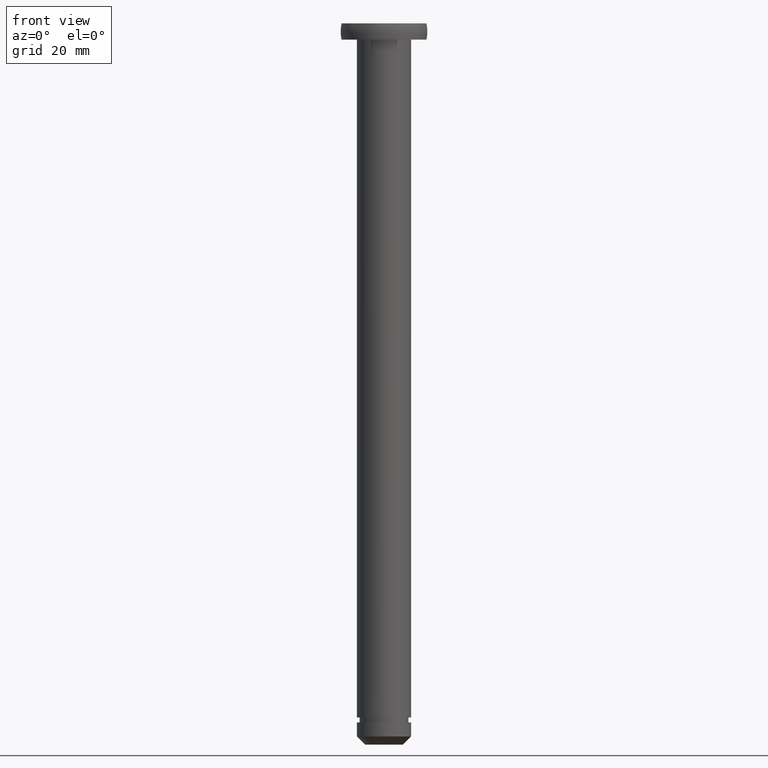
[diagram: clean part render]
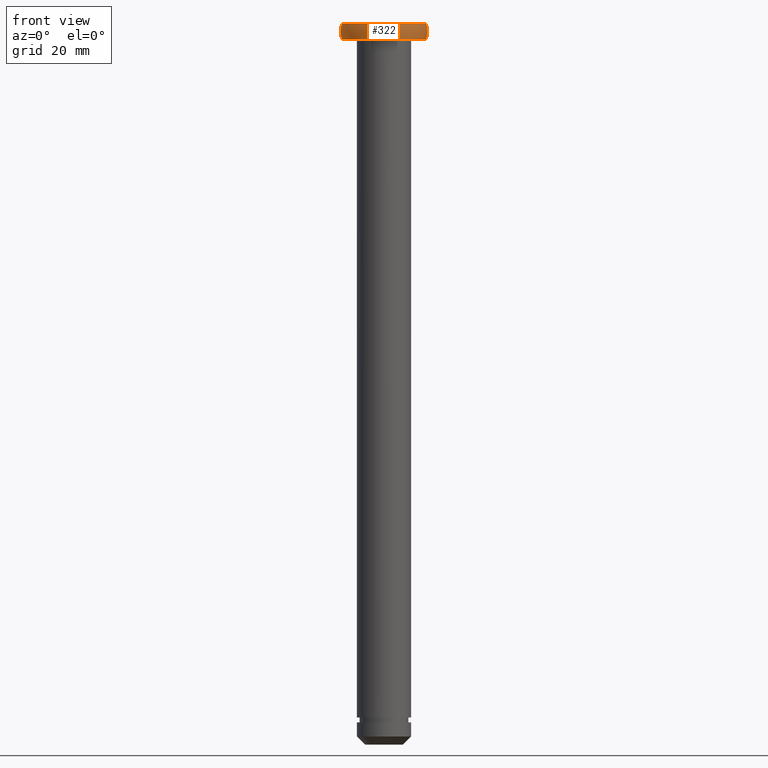
[diagram: same view with one face highlighted and labeled with its STEP entity id]
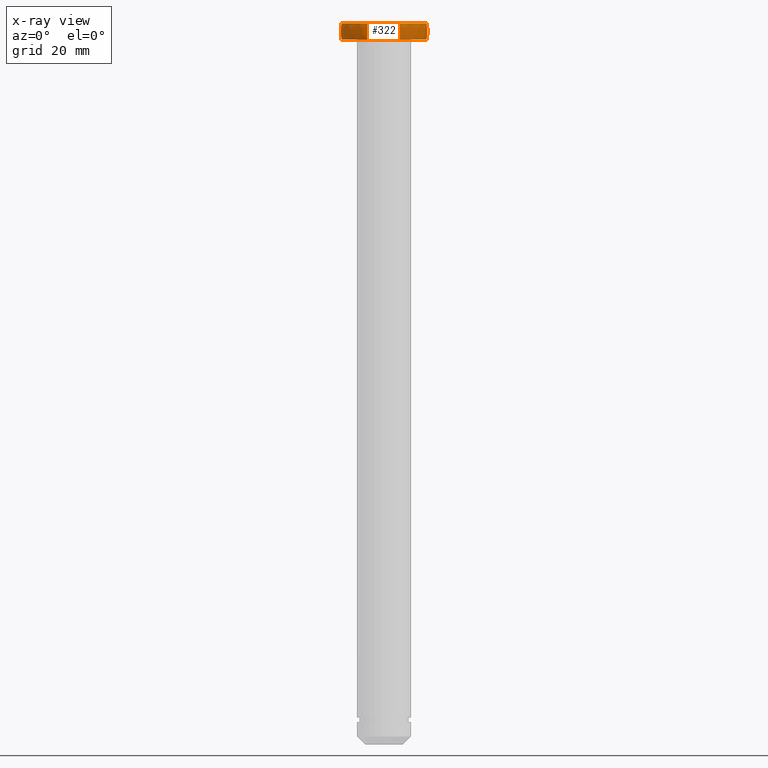
[diagram: x-ray of the same camera — body ghosted, the highlighted face saturated]
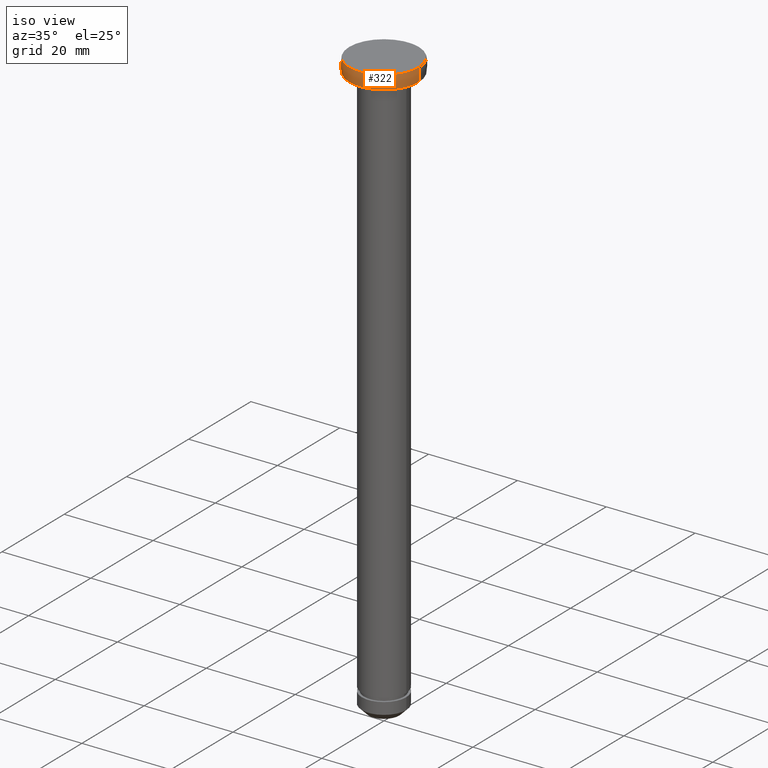
[diagram: same view with one face highlighted and labeled with its STEP entity id]
A machine part, front view. The second image highlights one B-rep face of the part: STEP entity #322.
The next image is the same camera in x-ray: the body ghosted, the highlighted face saturated — about 0% of this face is hidden behind the body in this view.
A second angle (iso view) of the same face is appended — the face is thin or edge-on in the first view.
In plain terms, the highlighted toroidal blend (fillet) surface has major radius 1.3572 mm and minor (blend) radius 6.6428 mm.
Its self-contained STEP definition (entity closure, byte-faithful):
#2 = DIRECTION ( 'NONE',  ( 0.0000000000000000000, 0.0000000000000000000, -1.000000000000000000 ) ) ;
#14 = VERTEX_POINT ( 'NONE', #204 ) ;
#29 = CARTESIAN_POINT ( 'NONE',  ( -7.828427118366898100, 0.0000000000000000000, -3.280275356898344000E-014 ) ) ;
#51 = AXIS2_PLACEMENT_3D ( 'NONE', #267, #450, #375 ) ;
#63 = CARTESIAN_POINT ( 'NONE',  ( 0.0000000000000000000, 0.0000000000000000000, -1.500000009021790000 ) ) ;
#84 = TOROIDAL_SURFACE ( 'NONE', #169, 1.357233208769998100, 6.642766791230085800 ) ;
#85 = CARTESIAN_POINT ( 'NONE',  ( 7.828427118366898100, 9.587058212866361900E-016, -3.280275356898344000E-014 ) ) ;
#90 = VERTEX_POINT ( 'NONE', #321 ) ;
#116 = CARTESIAN_POINT ( 'NONE',  ( -1.357233208769998100, 0.0000000000000000000, -1.500000009021790000 ) ) ;
#119 = CARTESIAN_POINT ( 'NONE',  ( 0.0000000000000000000, 0.0000000000000000000, -3.000000018043520000 ) ) ;
#124 = DIRECTION ( 'NONE',  ( -1.000000000000000000, 0.0000000000000000000, 0.0000000000000000000 ) ) ;
#144 = DIRECTION ( 'NONE',  ( 0.0000000000000000000, 0.0000000000000000000, -1.000000000000000000 ) ) ;
#169 = AXIS2_PLACEMENT_3D ( 'NONE', #63, #144, #124 ) ;
#188 = EDGE_CURVE ( 'NONE', #216, #420, #302, .T. ) ;
#196 = AXIS2_PLACEMENT_3D ( 'NONE', #119, #227, #350 ) ;
#204 = CARTESIAN_POINT ( 'NONE',  ( -7.828427118366898100, 0.0000000000000000000, -3.000000018043520000 ) ) ;
#208 = ORIENTED_EDGE ( 'NONE', *, *, #438, .F. ) ;
#211 = ORIENTED_EDGE ( 'NONE', *, *, #352, .F. ) ;
#216 = VERTEX_POINT ( 'NONE', #85 ) ;
#227 = DIRECTION ( 'NONE',  ( 0.0000000000000000000, 0.0000000000000000000, -1.000000000000000000 ) ) ;
#235 = EDGE_CURVE ( 'NONE', #420, #14, #357, .T. ) ;
#254 = ORIENTED_EDGE ( 'NONE', *, *, #235, .T. ) ;
#266 = FACE_OUTER_BOUND ( 'NONE', #458, .T. ) ;
#267 = CARTESIAN_POINT ( 'NONE',  ( 0.0000000000000000000, 0.0000000000000000000, -3.280275356898344000E-014 ) ) ;
#302 = CIRCLE ( 'NONE', #51, 7.828427118366898100 ) ;
#321 = CARTESIAN_POINT ( 'NONE',  ( 7.828427118366898100, 9.587058212866361900E-016, -3.000000018043520000 ) ) ;
#322 = ADVANCED_FACE ( 'NONE', ( #266 ), #84, .T. ) ;
#335 = DIRECTION ( 'NONE',  ( -1.000000000000000000, -1.224646799147353200E-016, 0.0000000000000000000 ) ) ;
#350 = DIRECTION ( 'NONE',  ( -1.000000000000000000, 0.0000000000000000000, 0.0000000000000000000 ) ) ;
#352 = EDGE_CURVE ( 'NONE', #90, #14, #448, .T. ) ;
#357 = CIRCLE ( 'NONE', #409, 6.642766791230085800 ) ;
#375 = DIRECTION ( 'NONE',  ( -1.000000000000000000, 0.0000000000000000000, 0.0000000000000000000 ) ) ;
#395 = ORIENTED_EDGE ( 'NONE', *, *, #188, .T. ) ;
#396 = DIRECTION ( 'NONE',  ( -1.224646799147353200E-016, 1.000000000000000000, 0.0000000000000000000 ) ) ;
#401 = CIRCLE ( 'NONE', #423, 6.642766791230085800 ) ;
#409 = AXIS2_PLACEMENT_3D ( 'NONE', #116, #413, #2 ) ;
#410 = CARTESIAN_POINT ( 'NONE',  ( 1.357233208769998100, 1.662131304816669500E-016, -1.500000009021790000 ) ) ;
#413 = DIRECTION ( 'NONE',  ( -0.0000000000000000000, -1.000000000000000000, -0.0000000000000000000 ) ) ;
#420 = VERTEX_POINT ( 'NONE', #29 ) ;
#423 = AXIS2_PLACEMENT_3D ( 'NONE', #410, #396, #335 ) ;
#438 = EDGE_CURVE ( 'NONE', #216, #90, #401, .T. ) ;
#448 = CIRCLE ( 'NONE', #196, 7.828427118366898100 ) ;
#450 = DIRECTION ( 'NONE',  ( 0.0000000000000000000, 0.0000000000000000000, -1.000000000000000000 ) ) ;
#458 = EDGE_LOOP ( 'NONE', ( #208, #395, #254, #211 ) ) ;